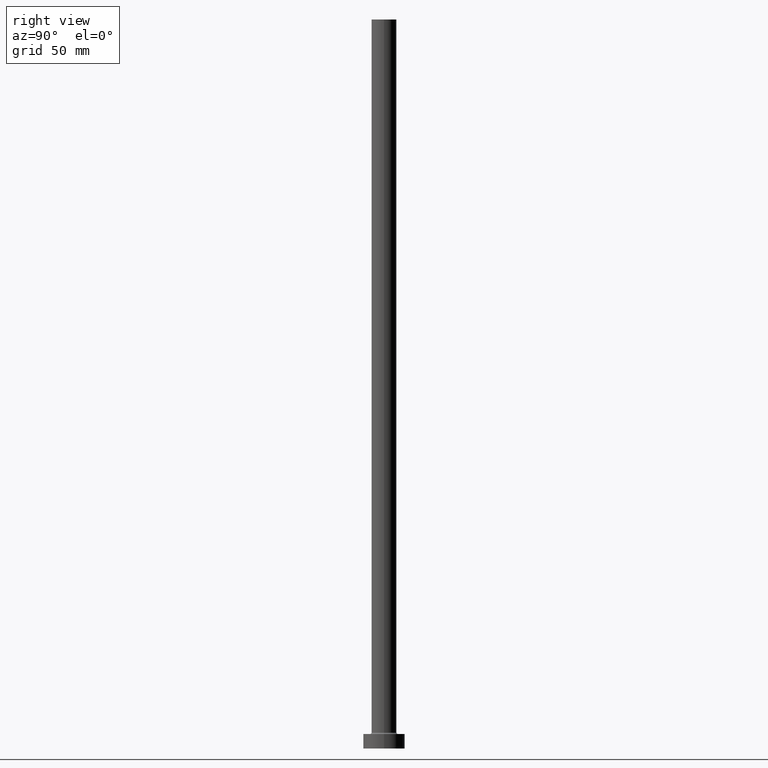
[diagram: clean part render]
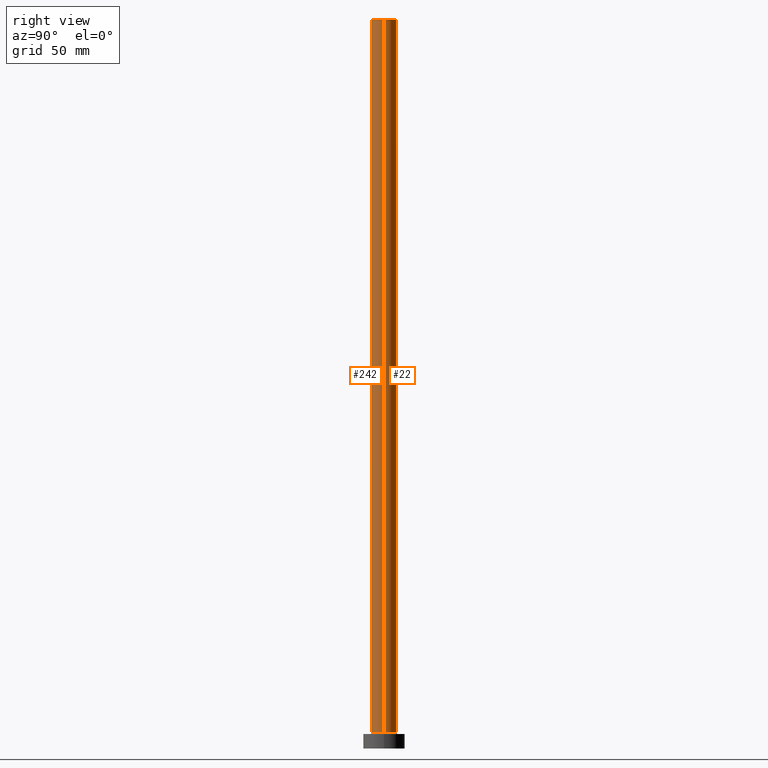
[diagram: same view with one multi-face feature highlighted, each face labeled with its STEP entity id]
A machine part, right view. The highlighted faces form ONE feature: a constant-radius fillet chain: 2 tangent blend faces with common blend radius 6 mm. The faces share edges in the B-rep.
Their STEP definitions:
[1] entity #22 (Cylinder):
#2 = DIRECTION ( 'NONE',  ( -0.000000000000000000, -0.000000000000000000, -1.000000000000000000 ) ) ;
#5 = EDGE_CURVE ( 'NONE', #386, #117, #93, .T. ) ;
#22 = ADVANCED_FACE ( 'NONE', ( #259 ), #399, .T. ) ;
#31 = DIRECTION ( 'NONE',  ( 1.000000000000000000, 0.000000000000000000, 0.000000000000000000 ) ) ;
#46 = VECTOR ( 'NONE', #174, 1000.000000000000000 ) ;
#54 = AXIS2_PLACEMENT_3D ( 'NONE', #224, #2, #375 ) ;
#56 = DIRECTION ( 'NONE',  ( -0.000000000000000000, -0.000000000000000000, -1.000000000000000000 ) ) ;
#78 = CARTESIAN_POINT ( 'NONE',  ( 6.000000000000000888, 7.347880794884120722E-16, 7.699999999999985079 ) ) ;
#93 = CIRCLE ( 'NONE', #314, 6.000000000000000888 ) ;
#100 = EDGE_CURVE ( 'NONE', #389, #287, #299, .T. ) ;
#105 = CARTESIAN_POINT ( 'NONE',  ( 6.000000000000000888, 7.347880794884120722E-16, 350.0000000000000568 ) ) ;
#108 = ORIENTED_EDGE ( 'NONE', *, *, #248, .F. ) ;
#115 = CARTESIAN_POINT ( 'NONE',  ( 0.000000000000000000, 0.000000000000000000, 7.699999999999985079 ) ) ;
#117 = VERTEX_POINT ( 'NONE', #196 ) ;
#119 = VECTOR ( 'NONE', #56, 1000.000000000000000 ) ;
#174 = DIRECTION ( 'NONE',  ( -0.000000000000000000, -0.000000000000000000, -1.000000000000000000 ) ) ;
#179 = CARTESIAN_POINT ( 'NONE',  ( -6.000000000000000888, 0.000000000000000000, 350.0000000000000568 ) ) ;
#196 = CARTESIAN_POINT ( 'NONE',  ( -6.000000000000000888, 0.000000000000000000, 7.699999999999985079 ) ) ;
#204 = CARTESIAN_POINT ( 'NONE',  ( -6.000000000000000888, 0.000000000000000000, 350.0000000000000568 ) ) ;
#220 = DIRECTION ( 'NONE',  ( 0.000000000000000000, 0.000000000000000000, 1.000000000000000000 ) ) ;
#224 = CARTESIAN_POINT ( 'NONE',  ( 0.000000000000000000, 0.000000000000000000, 350.0000000000000568 ) ) ;
#226 = ORIENTED_EDGE ( 'NONE', *, *, #5, .T. ) ;
#248 = EDGE_CURVE ( 'NONE', #287, #117, #415, .T. ) ;
#249 = AXIS2_PLACEMENT_3D ( 'NONE', #377, #274, #402 ) ;
#259 = FACE_OUTER_BOUND ( 'NONE', #313, .T. ) ;
#274 = DIRECTION ( 'NONE',  ( 0.000000000000000000, 0.000000000000000000, 1.000000000000000000 ) ) ;
#282 = EDGE_CURVE ( 'NONE', #389, #386, #283, .T. ) ;
#283 = LINE ( 'NONE', #105, #46 ) ;
#287 = VERTEX_POINT ( 'NONE', #179 ) ;
#299 = CIRCLE ( 'NONE', #249, 6.000000000000000888 ) ;
#313 = EDGE_LOOP ( 'NONE', ( #350, #420, #226, #108 ) ) ;
#314 = AXIS2_PLACEMENT_3D ( 'NONE', #115, #220, #31 ) ;
#350 = ORIENTED_EDGE ( 'NONE', *, *, #100, .F. ) ;
#356 = CARTESIAN_POINT ( 'NONE',  ( 6.000000000000000888, 7.347880794884120722E-16, 350.0000000000000568 ) ) ;
#375 = DIRECTION ( 'NONE',  ( -1.000000000000000000, 0.000000000000000000, 0.000000000000000000 ) ) ;
#377 = CARTESIAN_POINT ( 'NONE',  ( 0.000000000000000000, 0.000000000000000000, 350.0000000000000568 ) ) ;
#386 = VERTEX_POINT ( 'NONE', #78 ) ;
#389 = VERTEX_POINT ( 'NONE', #356 ) ;
#399 = CYLINDRICAL_SURFACE ( 'NONE', #54, 6.000000000000000888 ) ;
#402 = DIRECTION ( 'NONE',  ( 1.000000000000000000, 0.000000000000000000, 0.000000000000000000 ) ) ;
#415 = LINE ( 'NONE', #204, #119 ) ;
#420 = ORIENTED_EDGE ( 'NONE', *, *, #282, .T. ) ;
[2] entity #242 (Cylinder):
#46 = VECTOR ( 'NONE', #174, 1000.000000000000000 ) ;
#56 = DIRECTION ( 'NONE',  ( -0.000000000000000000, -0.000000000000000000, -1.000000000000000000 ) ) ;
#65 = ORIENTED_EDGE ( 'NONE', *, *, #248, .T. ) ;
#78 = CARTESIAN_POINT ( 'NONE',  ( 6.000000000000000888, 7.347880794884120722E-16, 7.699999999999985079 ) ) ;
#103 = CIRCLE ( 'NONE', #285, 6.000000000000000888 ) ;
#105 = CARTESIAN_POINT ( 'NONE',  ( 6.000000000000000888, 7.347880794884120722E-16, 350.0000000000000568 ) ) ;
#117 = VERTEX_POINT ( 'NONE', #196 ) ;
#119 = VECTOR ( 'NONE', #56, 1000.000000000000000 ) ;
#120 = AXIS2_PLACEMENT_3D ( 'NONE', #368, #221, #362 ) ;
#123 = DIRECTION ( 'NONE',  ( 1.000000000000000000, 0.000000000000000000, 0.000000000000000000 ) ) ;
#134 = ORIENTED_EDGE ( 'NONE', *, *, #167, .F. ) ;
#167 = EDGE_CURVE ( 'NONE', #287, #389, #103, .T. ) ;
#174 = DIRECTION ( 'NONE',  ( -0.000000000000000000, -0.000000000000000000, -1.000000000000000000 ) ) ;
#175 = EDGE_LOOP ( 'NONE', ( #330, #134, #65, #353 ) ) ;
#179 = CARTESIAN_POINT ( 'NONE',  ( -6.000000000000000888, 0.000000000000000000, 350.0000000000000568 ) ) ;
#196 = CARTESIAN_POINT ( 'NONE',  ( -6.000000000000000888, 0.000000000000000000, 7.699999999999985079 ) ) ;
#204 = CARTESIAN_POINT ( 'NONE',  ( -6.000000000000000888, 0.000000000000000000, 350.0000000000000568 ) ) ;
#214 = DIRECTION ( 'NONE',  ( -0.000000000000000000, -0.000000000000000000, -1.000000000000000000 ) ) ;
#221 = DIRECTION ( 'NONE',  ( 0.000000000000000000, 0.000000000000000000, 1.000000000000000000 ) ) ;
#237 = CYLINDRICAL_SURFACE ( 'NONE', #319, 6.000000000000000888 ) ;
#242 = ADVANCED_FACE ( 'NONE', ( #390 ), #237, .T. ) ;
#248 = EDGE_CURVE ( 'NONE', #287, #117, #415, .T. ) ;
#250 = CARTESIAN_POINT ( 'NONE',  ( 0.000000000000000000, 0.000000000000000000, 350.0000000000000568 ) ) ;
#282 = EDGE_CURVE ( 'NONE', #389, #386, #283, .T. ) ;
#283 = LINE ( 'NONE', #105, #46 ) ;
#285 = AXIS2_PLACEMENT_3D ( 'NONE', #303, #439, #123 ) ;
#287 = VERTEX_POINT ( 'NONE', #179 ) ;
#301 = CIRCLE ( 'NONE', #120, 6.000000000000000888 ) ;
#303 = CARTESIAN_POINT ( 'NONE',  ( 0.000000000000000000, 0.000000000000000000, 350.0000000000000568 ) ) ;
#319 = AXIS2_PLACEMENT_3D ( 'NONE', #250, #214, #421 ) ;
#330 = ORIENTED_EDGE ( 'NONE', *, *, #282, .F. ) ;
#353 = ORIENTED_EDGE ( 'NONE', *, *, #451, .T. ) ;
#356 = CARTESIAN_POINT ( 'NONE',  ( 6.000000000000000888, 7.347880794884120722E-16, 350.0000000000000568 ) ) ;
#362 = DIRECTION ( 'NONE',  ( 1.000000000000000000, 0.000000000000000000, 0.000000000000000000 ) ) ;
#368 = CARTESIAN_POINT ( 'NONE',  ( 0.000000000000000000, 0.000000000000000000, 7.699999999999985079 ) ) ;
#386 = VERTEX_POINT ( 'NONE', #78 ) ;
#389 = VERTEX_POINT ( 'NONE', #356 ) ;
#390 = FACE_OUTER_BOUND ( 'NONE', #175, .T. ) ;
#415 = LINE ( 'NONE', #204, #119 ) ;
#421 = DIRECTION ( 'NONE',  ( -1.000000000000000000, 0.000000000000000000, 0.000000000000000000 ) ) ;
#439 = DIRECTION ( 'NONE',  ( 0.000000000000000000, 0.000000000000000000, 1.000000000000000000 ) ) ;
#451 = EDGE_CURVE ( 'NONE', #117, #386, #301, .T. ) ;